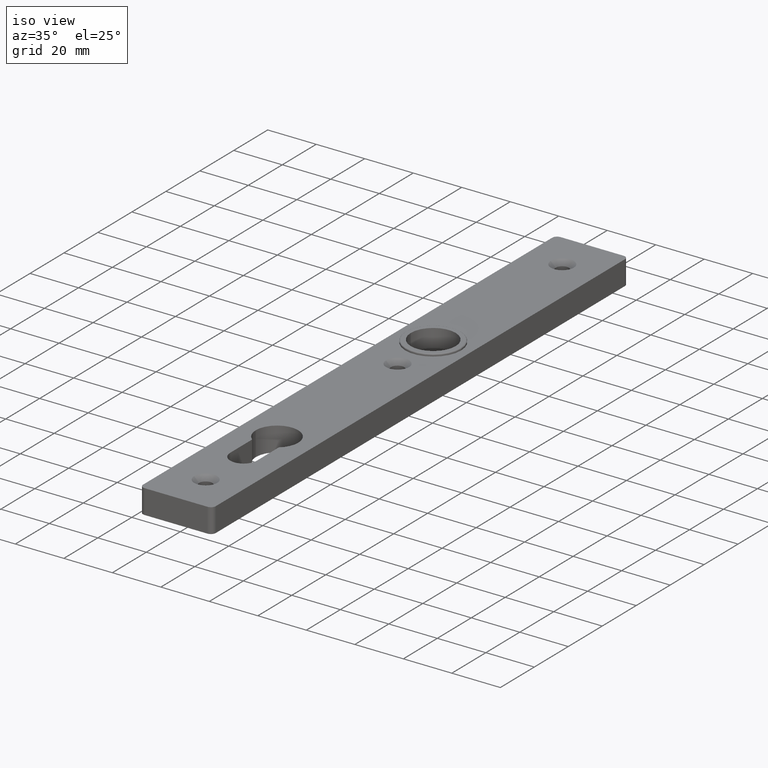
[diagram: clean part render]
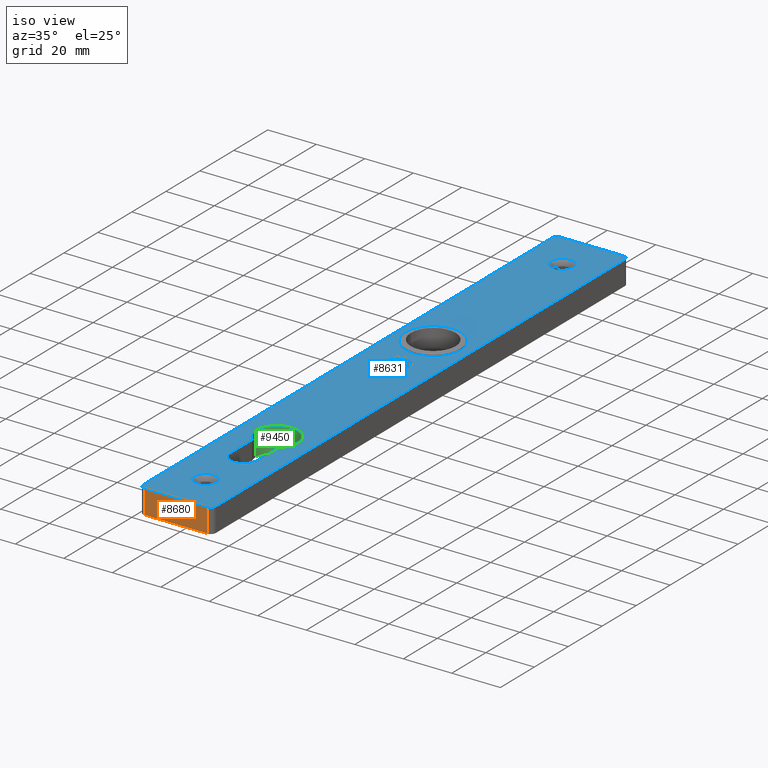
[diagram: same view with three faces highlighted in distinct colors, each labeled with its STEP entity id]
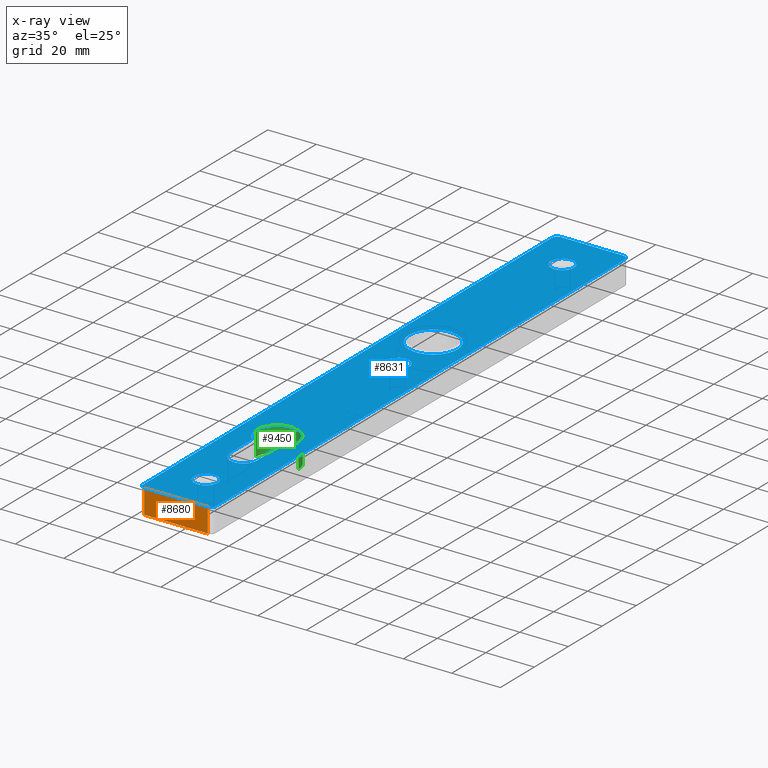
[diagram: x-ray of the same camera — body ghosted, the three highlighted faces saturated]
A machine part, iso view with three faces highlighted in distinct colors.
The next image is the same camera in x-ray (body ghosted, the three faces saturated) — at least one of them is partly hidden behind the body in this view.
Their STEP definitions:

[orange] entity #8680 — the highlighted planar face has unit normal (0, 1, 0).
#10 = CARTESIAN_POINT ( 'NONE',  ( 13.00000000000002487, -122.5000000000000000, 10.00000000000000000 ) ) ;
#228 = ORIENTED_EDGE ( 'NONE', *, *, #5323, .T. ) ;
#913 = CARTESIAN_POINT ( 'NONE',  ( 13.00000000000002487, -122.5000000000000000, 0.000000000000000000 ) ) ;
#1011 = CARTESIAN_POINT ( 'NONE',  ( 15.00000000000002487, -122.5000000000000000, 10.00000000000000000 ) ) ;
#1448 = CARTESIAN_POINT ( 'NONE',  ( 15.00000000000002487, -122.5000000000000000, 0.000000000000000000 ) ) ;
#1629 = DIRECTION ( 'NONE',  ( 1.000000000000000000, -0.000000000000000000, -0.000000000000000000 ) ) ;
#1949 = VERTEX_POINT ( 'NONE', #10 ) ;
#2296 = ORIENTED_EDGE ( 'NONE', *, *, #3142, .T. ) ;
#2373 = LINE ( 'NONE', #6270, #3693 ) ;
#2732 = EDGE_CURVE ( 'NONE', #9274, #1949, #2373, .T. ) ;
#3060 = FACE_OUTER_BOUND ( 'NONE', #7022, .T. ) ;
#3142 = EDGE_CURVE ( 'NONE', #7577, #9274, #9217, .T. ) ;
#3317 = LINE ( 'NONE', #8355, #4768 ) ;
#3693 = VECTOR ( 'NONE', #4640, 1000.000000000000000 ) ;
#3829 = VECTOR ( 'NONE', #9803, 1000.000000000000000 ) ;
#3959 = CARTESIAN_POINT ( 'NONE',  ( -13.00000000000002665, -122.5000000000000000, 0.000000000000000000 ) ) ;
#4164 = AXIS2_PLACEMENT_3D ( 'NONE', #1011, #4390, #6085 ) ;
#4390 = DIRECTION ( 'NONE',  ( 0.000000000000000000, 1.000000000000000000, -0.000000000000000000 ) ) ;
#4640 = DIRECTION ( 'NONE',  ( -0.000000000000000000, 0.000000000000000000, 1.000000000000000000 ) ) ;
#4659 = ORIENTED_EDGE ( 'NONE', *, *, #9141, .F. ) ;
#4768 = VECTOR ( 'NONE', #1629, 1000.000000000000000 ) ;
#4934 = LINE ( 'NONE', #9035, #5848 ) ;
#5316 = ORIENTED_EDGE ( 'NONE', *, *, #2732, .T. ) ;
#5323 = EDGE_CURVE ( 'NONE', #7915, #7577, #4934, .T. ) ;
#5848 = VECTOR ( 'NONE', #7468, 1000.000000000000000 ) ;
#5871 = CARTESIAN_POINT ( 'NONE',  ( -13.00000000000002665, -122.5000000000000000, 10.00000000000000000 ) ) ;
#6044 = PLANE ( 'NONE',  #4164 ) ;
#6085 = DIRECTION ( 'NONE',  ( 0.000000000000000000, 0.000000000000000000, 1.000000000000000000 ) ) ;
#6270 = CARTESIAN_POINT ( 'NONE',  ( 13.00000000000002487, -122.5000000000000000, 10.00000000000000000 ) ) ;
#7022 = EDGE_LOOP ( 'NONE', ( #2296, #5316, #4659, #228 ) ) ;
#7468 = DIRECTION ( 'NONE',  ( 0.000000000000000000, -0.000000000000000000, -1.000000000000000000 ) ) ;
#7577 = VERTEX_POINT ( 'NONE', #3959 ) ;
#7915 = VERTEX_POINT ( 'NONE', #5871 ) ;
#8355 = CARTESIAN_POINT ( 'NONE',  ( 15.00000000000002487, -122.5000000000000000, 10.00000000000000000 ) ) ;
#8680 = ADVANCED_FACE ( 'NONE', ( #3060 ), #6044, .F. ) ;
#9035 = CARTESIAN_POINT ( 'NONE',  ( -13.00000000000002665, -122.5000000000000000, 10.00000000000000000 ) ) ;
#9141 = EDGE_CURVE ( 'NONE', #7915, #1949, #3317, .T. ) ;
#9217 = LINE ( 'NONE', #1448, #3829 ) ;
#9274 = VERTEX_POINT ( 'NONE', #913 ) ;
#9803 = DIRECTION ( 'NONE',  ( 1.000000000000000000, -0.000000000000000000, -0.000000000000000000 ) ) ;

[blue] entity #8631 — the highlighted planar face has unit normal (0, 0, -1).
#10 = CARTESIAN_POINT ( 'NONE',  ( 13.00000000000002487, -122.5000000000000000, 10.00000000000000000 ) ) ;
#36 = ORIENTED_EDGE ( 'NONE', *, *, #1547, .F. ) ;
#42 = DIRECTION ( 'NONE',  ( -0.000000000000000000, -0.000000000000000000, -1.000000000000000000 ) ) ;
#241 = VERTEX_POINT ( 'NONE', #4394 ) ;
#266 = VERTEX_POINT ( 'NONE', #7735 ) ;
#387 = EDGE_LOOP ( 'NONE', ( #5712, #9007 ) ) ;
#393 = CARTESIAN_POINT ( 'NONE',  ( -13.00000000000002665, -120.5000000000000000, 10.00000000000000000 ) ) ;
#401 = CARTESIAN_POINT ( 'NONE',  ( -15.00000000000002487, 122.5000000000000000, 10.00000000000000000 ) ) ;
#465 = CARTESIAN_POINT ( 'NONE',  ( 0.000000000000000000, 105.0000000000000142, 10.00000000000000000 ) ) ;
#492 = CARTESIAN_POINT ( 'NONE',  ( 0.000000000000000000, -104.9999999999999858, 10.00000000000000000 ) ) ;
#503 = VERTEX_POINT ( 'NONE', #1101 ) ;
#567 = ORIENTED_EDGE ( 'NONE', *, *, #1956, .F. ) ;
#582 = DIRECTION ( 'NONE',  ( 0.000000000000000000, 0.000000000000000000, 1.000000000000000000 ) ) ;
#601 = VECTOR ( 'NONE', #8831, 1000.000000000000000 ) ;
#610 = VERTEX_POINT ( 'NONE', #4629 ) ;
#615 = EDGE_CURVE ( 'NONE', #916, #9663, #8585, .T. ) ;
#624 = DIRECTION ( 'NONE',  ( 0.000000000000000000, 0.000000000000000000, 1.000000000000000000 ) ) ;
#730 = LINE ( 'NONE', #1824, #3464 ) ;
#837 = ORIENTED_EDGE ( 'NONE', *, *, #1616, .T. ) ;
#916 = VERTEX_POINT ( 'NONE', #4495 ) ;
#960 = DIRECTION ( 'NONE',  ( -0.000000000000000000, -0.000000000000000000, -1.000000000000000000 ) ) ;
#963 = DIRECTION ( 'NONE',  ( 0.000000000000000000, 0.000000000000000000, 1.000000000000000000 ) ) ;
#965 = CARTESIAN_POINT ( 'NONE',  ( 0.000000000000000000, -62.99999999999998579, 10.00000000000000000 ) ) ;
#1003 = CARTESIAN_POINT ( 'NONE',  ( 4.750000000000031974, -104.9999999999999858, 10.00000000000000000 ) ) ;
#1055 = CARTESIAN_POINT ( 'NONE',  ( 13.00000000000002665, 122.5000000000000000, 10.00000000000000000 ) ) ;
#1057 = DIRECTION ( 'NONE',  ( -1.000000000000000000, 0.000000000000000000, 0.000000000000000000 ) ) ;
#1101 = CARTESIAN_POINT ( 'NONE',  ( 10.00000000000000711, 29.00000000000001066, 10.00000000000000000 ) ) ;
#1122 = EDGE_CURVE ( 'NONE', #241, #2528, #2653, .T. ) ;
#1182 = DIRECTION ( 'NONE',  ( -1.000000000000000000, 0.000000000000000000, 0.000000000000000000 ) ) ;
#1286 = AXIS2_PLACEMENT_3D ( 'NONE', #6003, #960, #6863 ) ;
#1354 = CIRCLE ( 'NONE', #2350, 10.00000000000000711 ) ;
#1438 = DIRECTION ( 'NONE',  ( -0.000000000000000000, -0.000000000000000000, -1.000000000000000000 ) ) ;
#1492 = AXIS2_PLACEMENT_3D ( 'NONE', #492, #5419, #7099 ) ;
#1508 = FACE_BOUND ( 'NONE', #5921, .T. ) ;
#1547 = EDGE_CURVE ( 'NONE', #503, #9406, #1354, .T. ) ;
#1616 = EDGE_CURVE ( 'NONE', #2405, #5852, #7644, .T. ) ;
#1629 = DIRECTION ( 'NONE',  ( 1.000000000000000000, -0.000000000000000000, -0.000000000000000000 ) ) ;
#1737 = CARTESIAN_POINT ( 'NONE',  ( -13.00000000000002487, 120.5000000000000000, 10.00000000000000000 ) ) ;
#1822 = AXIS2_PLACEMENT_3D ( 'NONE', #393, #6257, #1057 ) ;
#1824 = CARTESIAN_POINT ( 'NONE',  ( 5.499999999999997335, -69.80532879440809779, 10.00000000000000000 ) ) ;
#1828 = CARTESIAN_POINT ( 'NONE',  ( -10.00000000000000711, 29.00000000000001066, 10.00000000000000000 ) ) ;
#1845 = VECTOR ( 'NONE', #3251, 1000.000000000000000 ) ;
#1862 = DIRECTION ( 'NONE',  ( -2.010159371866587315E-16, 1.000000000000000000, -0.000000000000000000 ) ) ;
#1886 = LINE ( 'NONE', #10755, #7801 ) ;
#1910 = CARTESIAN_POINT ( 'NONE',  ( -13.00000000000002487, 122.5000000000000000, 10.00000000000000000 ) ) ;
#1917 = DIRECTION ( 'NONE',  ( -1.000000000000000000, 0.000000000000000000, 0.000000000000000000 ) ) ;
#1923 = DIRECTION ( 'NONE',  ( -1.000000000000000000, 0.000000000000000000, 0.000000000000000000 ) ) ;
#1927 = DIRECTION ( 'NONE',  ( 0.000000000000000000, 0.000000000000000000, 1.000000000000000000 ) ) ;
#1949 = VERTEX_POINT ( 'NONE', #10 ) ;
#1956 = EDGE_CURVE ( 'NONE', #8756, #7638, #5687, .T. ) ;
#2029 = CIRCLE ( 'NONE', #5349, 2.000000000000000000 ) ;
#2054 = DIRECTION ( 'NONE',  ( 1.000000000000000000, 0.000000000000000000, 0.000000000000000000 ) ) ;
#2195 = ORIENTED_EDGE ( 'NONE', *, *, #6468, .T. ) ;
#2229 = CARTESIAN_POINT ( 'NONE',  ( 0.000000000000000000, 29.00000000000001066, 10.00000000000000000 ) ) ;
#2261 = CARTESIAN_POINT ( 'NONE',  ( -8.750000000000003553, -62.99999999999998579, 10.00000000000000000 ) ) ;
#2290 = DIRECTION ( 'NONE',  ( -1.000000000000000000, 0.000000000000000000, 0.000000000000000000 ) ) ;
#2302 = CARTESIAN_POINT ( 'NONE',  ( -5.500000000000000000, -82.74999999999998579, 10.00000000000000000 ) ) ;
#2306 = ORIENTED_EDGE ( 'NONE', *, *, #9569, .F. ) ;
#2350 = AXIS2_PLACEMENT_3D ( 'NONE', #2229, #582, #8267 ) ;
#2405 = VERTEX_POINT ( 'NONE', #1003 ) ;
#2409 = FACE_OUTER_BOUND ( 'NONE', #4952, .T. ) ;
#2421 = DIRECTION ( 'NONE',  ( -0.000000000000000000, 0.000000000000000000, -1.000000000000000000 ) ) ;
#2460 = EDGE_CURVE ( 'NONE', #7638, #8427, #7765, .T. ) ;
#2472 = CARTESIAN_POINT ( 'NONE',  ( 0.000000000000000000, -82.74999999999998579, 10.00000000000000000 ) ) ;
#2528 = VERTEX_POINT ( 'NONE', #7027 ) ;
#2653 = CIRCLE ( 'NONE', #10442, 5.500000000000000000 ) ;
#2716 = DIRECTION ( 'NONE',  ( 0.000000000000000000, 0.000000000000000000, 1.000000000000000000 ) ) ;
#2805 = EDGE_CURVE ( 'NONE', #3872, #266, #10656, .T. ) ;
#2844 = CARTESIAN_POINT ( 'NONE',  ( -15.00000000000002487, -120.5000000000000000, 10.00000000000000000 ) ) ;
#2925 = DIRECTION ( 'NONE',  ( 0.000000000000000000, 0.000000000000000000, 1.000000000000000000 ) ) ;
#3023 = DIRECTION ( 'NONE',  ( -1.000000000000000000, 0.000000000000000000, 0.000000000000000000 ) ) ;
#3178 = ORIENTED_EDGE ( 'NONE', *, *, #6805, .F. ) ;
#3228 = DIRECTION ( 'NONE',  ( 1.000000000000000000, 0.000000000000000000, 0.000000000000000000 ) ) ;
#3251 = DIRECTION ( 'NONE',  ( -0.000000000000000000, 1.000000000000000000, -0.000000000000000000 ) ) ;
#3309 = CARTESIAN_POINT ( 'NONE',  ( 0.000000000000000000, -62.99999999999998579, 10.00000000000000000 ) ) ;
#3317 = LINE ( 'NONE', #8355, #4768 ) ;
#3322 = EDGE_LOOP ( 'NONE', ( #8745, #4581, #567, #7609, #3178, #4194 ) ) ;
#3464 = VECTOR ( 'NONE', #1862, 1000.000000000000000 ) ;
#3565 = DIRECTION ( 'NONE',  ( 1.000000000000000000, 0.000000000000000000, 0.000000000000000000 ) ) ;
#3682 = AXIS2_PLACEMENT_3D ( 'NONE', #465, #3811, #2290 ) ;
#3748 = CIRCLE ( 'NONE', #1492, 4.750000000000031974 ) ;
#3811 = DIRECTION ( 'NONE',  ( -0.000000000000000000, -0.000000000000000000, -1.000000000000000000 ) ) ;
#3854 = DIRECTION ( 'NONE',  ( -6.700531239555291460E-17, -1.000000000000000000, -0.000000000000000000 ) ) ;
#3872 = VERTEX_POINT ( 'NONE', #8177 ) ;
#4114 = DIRECTION ( 'NONE',  ( 0.000000000000000000, -1.000000000000000000, 0.000000000000000000 ) ) ;
#4136 = EDGE_CURVE ( 'NONE', #6822, #10654, #6388, .T. ) ;
#4145 = CARTESIAN_POINT ( 'NONE',  ( 0.000000000000000000, 0.000000000000000000, 10.00000000000000000 ) ) ;
#4158 = DIRECTION ( 'NONE',  ( 0.000000000000000000, 0.000000000000000000, 1.000000000000000000 ) ) ;
#4181 = ORIENTED_EDGE ( 'NONE', *, *, #5920, .T. ) ;
#4194 = ORIENTED_EDGE ( 'NONE', *, *, #1122, .F. ) ;
#4215 = AXIS2_PLACEMENT_3D ( 'NONE', #9509, #2925, #1182 ) ;
#4394 = CARTESIAN_POINT ( 'NONE',  ( -5.500000000000000000, -82.74999999999998579, 10.00000000000000000 ) ) ;
#4495 = CARTESIAN_POINT ( 'NONE',  ( 4.750000000000059508, 105.0000000000000142, 10.00000000000000000 ) ) ;
#4581 = ORIENTED_EDGE ( 'NONE', *, *, #2460, .F. ) ;
#4629 = CARTESIAN_POINT ( 'NONE',  ( -15.00000000000002487, 120.5000000000000000, 10.00000000000000000 ) ) ;
#4649 = VECTOR ( 'NONE', #3854, 1000.000000000000000 ) ;
#4726 = CARTESIAN_POINT ( 'NONE',  ( 15.00000000000002487, 120.5000000000000000, 10.00000000000000000 ) ) ;
#4768 = VECTOR ( 'NONE', #1629, 1000.000000000000000 ) ;
#4915 = FACE_BOUND ( 'NONE', #3322, .T. ) ;
#4952 = EDGE_LOOP ( 'NONE', ( #7523, #6067, #5191, #6642, #10158, #7226, #10372, #4181 ) ) ;
#4964 = PLANE ( 'NONE',  #8116 ) ;
#4973 = CARTESIAN_POINT ( 'NONE',  ( 0.000000000000000000, 8.000000000000010658, 10.00000000000000000 ) ) ;
#5018 = DIRECTION ( 'NONE',  ( -1.000000000000000000, 0.000000000000000000, 0.000000000000000000 ) ) ;
#5084 = AXIS2_PLACEMENT_3D ( 'NONE', #5742, #624, #3228 ) ;
#5153 = AXIS2_PLACEMENT_3D ( 'NONE', #8248, #1438, #1923 ) ;
#5191 = ORIENTED_EDGE ( 'NONE', *, *, #9998, .T. ) ;
#5205 = EDGE_CURVE ( 'NONE', #5852, #2405, #3748, .T. ) ;
#5349 = AXIS2_PLACEMENT_3D ( 'NONE', #6941, #6147, #1917 ) ;
#5419 = DIRECTION ( 'NONE',  ( -0.000000000000000000, -0.000000000000000000, -1.000000000000000000 ) ) ;
#5421 = EDGE_CURVE ( 'NONE', #266, #3872, #7163, .T. ) ;
#5431 = FACE_BOUND ( 'NONE', #387, .T. ) ;
#5568 = CIRCLE ( 'NONE', #7036, 2.000000000000000000 ) ;
#5687 = CIRCLE ( 'NONE', #7988, 8.750000000000003553 ) ;
#5712 = ORIENTED_EDGE ( 'NONE', *, *, #2805, .T. ) ;
#5742 = CARTESIAN_POINT ( 'NONE',  ( 0.000000000000000000, 29.00000000000001066, 10.00000000000000000 ) ) ;
#5745 = AXIS2_PLACEMENT_3D ( 'NONE', #965, #2716, #3565 ) ;
#5852 = VERTEX_POINT ( 'NONE', #8711 ) ;
#5871 = CARTESIAN_POINT ( 'NONE',  ( -13.00000000000002665, -122.5000000000000000, 10.00000000000000000 ) ) ;
#5920 = EDGE_CURVE ( 'NONE', #6387, #7915, #10034, .T. ) ;
#5921 = EDGE_LOOP ( 'NONE', ( #837, #8613 ) ) ;
#6002 = AXIS2_PLACEMENT_3D ( 'NONE', #7062, #1927, #2054 ) ;
#6003 = CARTESIAN_POINT ( 'NONE',  ( 0.000000000000000000, 8.000000000000010658, 10.00000000000000000 ) ) ;
#6067 = ORIENTED_EDGE ( 'NONE', *, *, #6892, .T. ) ;
#6080 = AXIS2_PLACEMENT_3D ( 'NONE', #4973, #42, #7527 ) ;
#6119 = ORIENTED_EDGE ( 'NONE', *, *, #615, .T. ) ;
#6147 = DIRECTION ( 'NONE',  ( 0.000000000000000000, 0.000000000000000000, 1.000000000000000000 ) ) ;
#6217 = CIRCLE ( 'NONE', #6002, 8.750000000000003553 ) ;
#6257 = DIRECTION ( 'NONE',  ( 0.000000000000000000, 0.000000000000000000, 1.000000000000000000 ) ) ;
#6283 = CARTESIAN_POINT ( 'NONE',  ( -5.499999999999999112, -69.80532879440809779, 10.00000000000000000 ) ) ;
#6349 = CARTESIAN_POINT ( 'NONE',  ( 15.00000000000002487, -120.5000000000000000, 10.00000000000000000 ) ) ;
#6364 = VERTEX_POINT ( 'NONE', #6918 ) ;
#6387 = VERTEX_POINT ( 'NONE', #2844 ) ;
#6388 = LINE ( 'NONE', #401, #601 ) ;
#6468 = EDGE_CURVE ( 'NONE', #9663, #916, #8231, .T. ) ;
#6559 = EDGE_LOOP ( 'NONE', ( #6119, #2195 ) ) ;
#6642 = ORIENTED_EDGE ( 'NONE', *, *, #7934, .T. ) ;
#6650 = DIRECTION ( 'NONE',  ( -1.000000000000000000, 0.000000000000000000, 0.000000000000000000 ) ) ;
#6711 = CARTESIAN_POINT ( 'NONE',  ( -4.750000000000059508, 105.0000000000000142, 10.00000000000000000 ) ) ;
#6751 = AXIS2_PLACEMENT_3D ( 'NONE', #8893, #10597, #3023 ) ;
#6805 = EDGE_CURVE ( 'NONE', #2528, #6364, #730, .T. ) ;
#6822 = VERTEX_POINT ( 'NONE', #1055 ) ;
#6863 = DIRECTION ( 'NONE',  ( -1.000000000000000000, 0.000000000000000000, 0.000000000000000000 ) ) ;
#6892 = EDGE_CURVE ( 'NONE', #1949, #7065, #8882, .T. ) ;
#6918 = CARTESIAN_POINT ( 'NONE',  ( 5.499999999999997335, -69.80532879440809779, 10.00000000000000000 ) ) ;
#6941 = CARTESIAN_POINT ( 'NONE',  ( 13.00000000000002665, 120.5000000000000000, 10.00000000000000000 ) ) ;
#7027 = CARTESIAN_POINT ( 'NONE',  ( 5.500000000000000000, -82.74999999999998579, 10.00000000000000000 ) ) ;
#7036 = AXIS2_PLACEMENT_3D ( 'NONE', #1737, #963, #5018 ) ;
#7040 = EDGE_CURVE ( 'NONE', #610, #6387, #1886, .T. ) ;
#7062 = CARTESIAN_POINT ( 'NONE',  ( 0.000000000000000000, -62.99999999999998579, 10.00000000000000000 ) ) ;
#7065 = VERTEX_POINT ( 'NONE', #6349 ) ;
#7099 = DIRECTION ( 'NONE',  ( -1.000000000000000000, 0.000000000000000000, 0.000000000000000000 ) ) ;
#7163 = CIRCLE ( 'NONE', #1286, 4.750000000000059508 ) ;
#7226 = ORIENTED_EDGE ( 'NONE', *, *, #7880, .T. ) ;
#7437 = VERTEX_POINT ( 'NONE', #4726 ) ;
#7456 = EDGE_CURVE ( 'NONE', #8427, #241, #9136, .T. ) ;
#7475 = CARTESIAN_POINT ( 'NONE',  ( 15.00000000000002487, 122.5000000000000000, 10.00000000000000000 ) ) ;
#7523 = ORIENTED_EDGE ( 'NONE', *, *, #9141, .T. ) ;
#7527 = DIRECTION ( 'NONE',  ( -1.000000000000000000, 0.000000000000000000, 0.000000000000000000 ) ) ;
#7568 = DIRECTION ( 'NONE',  ( 1.000000000000000000, 0.000000000000000000, 0.000000000000000000 ) ) ;
#7609 = ORIENTED_EDGE ( 'NONE', *, *, #8796, .F. ) ;
#7638 = VERTEX_POINT ( 'NONE', #2261 ) ;
#7644 = CIRCLE ( 'NONE', #5153, 4.750000000000031974 ) ;
#7651 = FACE_BOUND ( 'NONE', #6559, .T. ) ;
#7735 = CARTESIAN_POINT ( 'NONE',  ( -4.750000000000059508, 8.000000000000010658, 10.00000000000000000 ) ) ;
#7765 = CIRCLE ( 'NONE', #5745, 8.750000000000003553 ) ;
#7801 = VECTOR ( 'NONE', #4114, 1000.000000000000000 ) ;
#7880 = EDGE_CURVE ( 'NONE', #10654, #610, #5568, .T. ) ;
#7915 = VERTEX_POINT ( 'NONE', #5871 ) ;
#7934 = EDGE_CURVE ( 'NONE', #7437, #6822, #2029, .T. ) ;
#7988 = AXIS2_PLACEMENT_3D ( 'NONE', #3309, #4158, #10025 ) ;
#8116 = AXIS2_PLACEMENT_3D ( 'NONE', #4145, #2421, #6650 ) ;
#8177 = CARTESIAN_POINT ( 'NONE',  ( 4.750000000000059508, 8.000000000000010658, 10.00000000000000000 ) ) ;
#8206 = FACE_BOUND ( 'NONE', #10097, .T. ) ;
#8231 = CIRCLE ( 'NONE', #6751, 4.750000000000059508 ) ;
#8248 = CARTESIAN_POINT ( 'NONE',  ( 0.000000000000000000, -104.9999999999999858, 10.00000000000000000 ) ) ;
#8267 = DIRECTION ( 'NONE',  ( 1.000000000000000000, 0.000000000000000000, 0.000000000000000000 ) ) ;
#8355 = CARTESIAN_POINT ( 'NONE',  ( 15.00000000000002487, -122.5000000000000000, 10.00000000000000000 ) ) ;
#8427 = VERTEX_POINT ( 'NONE', #6283 ) ;
#8497 = DIRECTION ( 'NONE',  ( 0.000000000000000000, 0.000000000000000000, 1.000000000000000000 ) ) ;
#8585 = CIRCLE ( 'NONE', #3682, 4.750000000000059508 ) ;
#8613 = ORIENTED_EDGE ( 'NONE', *, *, #5205, .T. ) ;
#8631 = ADVANCED_FACE ( 'NONE', ( #1508, #4915, #7651, #5431, #2409, #8206 ), #4964, .F. ) ;
#8711 = CARTESIAN_POINT ( 'NONE',  ( -4.750000000000031974, -104.9999999999999858, 10.00000000000000000 ) ) ;
#8745 = ORIENTED_EDGE ( 'NONE', *, *, #7456, .F. ) ;
#8756 = VERTEX_POINT ( 'NONE', #10486 ) ;
#8796 = EDGE_CURVE ( 'NONE', #6364, #8756, #6217, .T. ) ;
#8831 = DIRECTION ( 'NONE',  ( -1.000000000000000000, -0.000000000000000000, -0.000000000000000000 ) ) ;
#8845 = CIRCLE ( 'NONE', #5084, 10.00000000000000711 ) ;
#8882 = CIRCLE ( 'NONE', #4215, 2.000000000000000000 ) ;
#8893 = CARTESIAN_POINT ( 'NONE',  ( 0.000000000000000000, 105.0000000000000142, 10.00000000000000000 ) ) ;
#9007 = ORIENTED_EDGE ( 'NONE', *, *, #5421, .T. ) ;
#9136 = LINE ( 'NONE', #2302, #4649 ) ;
#9141 = EDGE_CURVE ( 'NONE', #7915, #1949, #3317, .T. ) ;
#9406 = VERTEX_POINT ( 'NONE', #1828 ) ;
#9509 = CARTESIAN_POINT ( 'NONE',  ( 13.00000000000002487, -120.5000000000000000, 10.00000000000000000 ) ) ;
#9569 = EDGE_CURVE ( 'NONE', #9406, #503, #8845, .T. ) ;
#9663 = VERTEX_POINT ( 'NONE', #6711 ) ;
#9998 = EDGE_CURVE ( 'NONE', #7065, #7437, #10242, .T. ) ;
#10025 = DIRECTION ( 'NONE',  ( 1.000000000000000000, 0.000000000000000000, 0.000000000000000000 ) ) ;
#10034 = CIRCLE ( 'NONE', #1822, 2.000000000000000000 ) ;
#10097 = EDGE_LOOP ( 'NONE', ( #2306, #36 ) ) ;
#10158 = ORIENTED_EDGE ( 'NONE', *, *, #4136, .T. ) ;
#10242 = LINE ( 'NONE', #7475, #1845 ) ;
#10372 = ORIENTED_EDGE ( 'NONE', *, *, #7040, .T. ) ;
#10442 = AXIS2_PLACEMENT_3D ( 'NONE', #2472, #8497, #7568 ) ;
#10486 = CARTESIAN_POINT ( 'NONE',  ( 8.750000000000003553, -62.99999999999998579, 10.00000000000000000 ) ) ;
#10597 = DIRECTION ( 'NONE',  ( -0.000000000000000000, -0.000000000000000000, -1.000000000000000000 ) ) ;
#10654 = VERTEX_POINT ( 'NONE', #1910 ) ;
#10656 = CIRCLE ( 'NONE', #6080, 4.750000000000059508 ) ;
#10755 = CARTESIAN_POINT ( 'NONE',  ( -15.00000000000002487, 122.5000000000000000, 10.00000000000000000 ) ) ;

[green] entity #9450 — the highlighted cylindrical surface (edge-blend (fillet) strip) has radius 8.75 mm, axis along (0, 0, 1).
#978 = CARTESIAN_POINT ( 'NONE',  ( -8.750000000000003553, -62.99999999999998579, 0.000000000000000000 ) ) ;
#1517 = EDGE_CURVE ( 'NONE', #8733, #7638, #10807, .T. ) ;
#1689 = EDGE_LOOP ( 'NONE', ( #8425, #1864, #10858, #8878 ) ) ;
#1864 = ORIENTED_EDGE ( 'NONE', *, *, #9472, .F. ) ;
#1903 = AXIS2_PLACEMENT_3D ( 'NONE', #3591, #6259, #7079 ) ;
#1956 = EDGE_CURVE ( 'NONE', #8756, #7638, #5687, .T. ) ;
#2261 = CARTESIAN_POINT ( 'NONE',  ( -8.750000000000003553, -62.99999999999998579, 10.00000000000000000 ) ) ;
#2771 = CIRCLE ( 'NONE', #1903, 8.750000000000003553 ) ;
#3309 = CARTESIAN_POINT ( 'NONE',  ( 0.000000000000000000, -62.99999999999998579, 10.00000000000000000 ) ) ;
#3591 = CARTESIAN_POINT ( 'NONE',  ( 0.000000000000000000, -62.99999999999998579, 0.000000000000000000 ) ) ;
#3631 = CARTESIAN_POINT ( 'NONE',  ( 8.750000000000003553, -62.99999999999998579, 0.000000000000000000 ) ) ;
#3633 = CARTESIAN_POINT ( 'NONE',  ( 0.000000000000000000, -62.99999999999998579, 0.000000000000000000 ) ) ;
#3669 = DIRECTION ( 'NONE',  ( -0.000000000000000000, -0.000000000000000000, 1.000000000000000000 ) ) ;
#4158 = DIRECTION ( 'NONE',  ( 0.000000000000000000, 0.000000000000000000, 1.000000000000000000 ) ) ;
#4727 = AXIS2_PLACEMENT_3D ( 'NONE', #3633, #3669, #7047 ) ;
#5273 = FACE_OUTER_BOUND ( 'NONE', #1689, .T. ) ;
#5440 = DIRECTION ( 'NONE',  ( -0.000000000000000000, -0.000000000000000000, 1.000000000000000000 ) ) ;
#5687 = CIRCLE ( 'NONE', #7988, 8.750000000000003553 ) ;
#5930 = VERTEX_POINT ( 'NONE', #3631 ) ;
#6259 = DIRECTION ( 'NONE',  ( 0.000000000000000000, 0.000000000000000000, 1.000000000000000000 ) ) ;
#6343 = VECTOR ( 'NONE', #9797, 1000.000000000000000 ) ;
#7047 = DIRECTION ( 'NONE',  ( 1.000000000000000000, 0.000000000000000000, 0.000000000000000000 ) ) ;
#7079 = DIRECTION ( 'NONE',  ( 1.000000000000000000, 0.000000000000000000, 0.000000000000000000 ) ) ;
#7638 = VERTEX_POINT ( 'NONE', #2261 ) ;
#7988 = AXIS2_PLACEMENT_3D ( 'NONE', #3309, #4158, #10025 ) ;
#8238 = CARTESIAN_POINT ( 'NONE',  ( -8.750000000000003553, -62.99999999999998579, 0.000000000000000000 ) ) ;
#8425 = ORIENTED_EDGE ( 'NONE', *, *, #1517, .F. ) ;
#8733 = VERTEX_POINT ( 'NONE', #978 ) ;
#8756 = VERTEX_POINT ( 'NONE', #10486 ) ;
#8878 = ORIENTED_EDGE ( 'NONE', *, *, #1956, .T. ) ;
#9112 = CYLINDRICAL_SURFACE ( 'NONE', #4727, 8.750000000000003553 ) ;
#9232 = VECTOR ( 'NONE', #5440, 1000.000000000000000 ) ;
#9450 = ADVANCED_FACE ( 'NONE', ( #5273 ), #9112, .F. ) ;
#9472 = EDGE_CURVE ( 'NONE', #5930, #8733, #2771, .T. ) ;
#9554 = EDGE_CURVE ( 'NONE', #5930, #8756, #10536, .T. ) ;
#9765 = CARTESIAN_POINT ( 'NONE',  ( 8.750000000000003553, -62.99999999999998579, 0.000000000000000000 ) ) ;
#9797 = DIRECTION ( 'NONE',  ( -0.000000000000000000, -0.000000000000000000, 1.000000000000000000 ) ) ;
#10025 = DIRECTION ( 'NONE',  ( 1.000000000000000000, 0.000000000000000000, 0.000000000000000000 ) ) ;
#10486 = CARTESIAN_POINT ( 'NONE',  ( 8.750000000000003553, -62.99999999999998579, 10.00000000000000000 ) ) ;
#10536 = LINE ( 'NONE', #9765, #9232 ) ;
#10807 = LINE ( 'NONE', #8238, #6343 ) ;
#10858 = ORIENTED_EDGE ( 'NONE', *, *, #9554, .T. ) ;